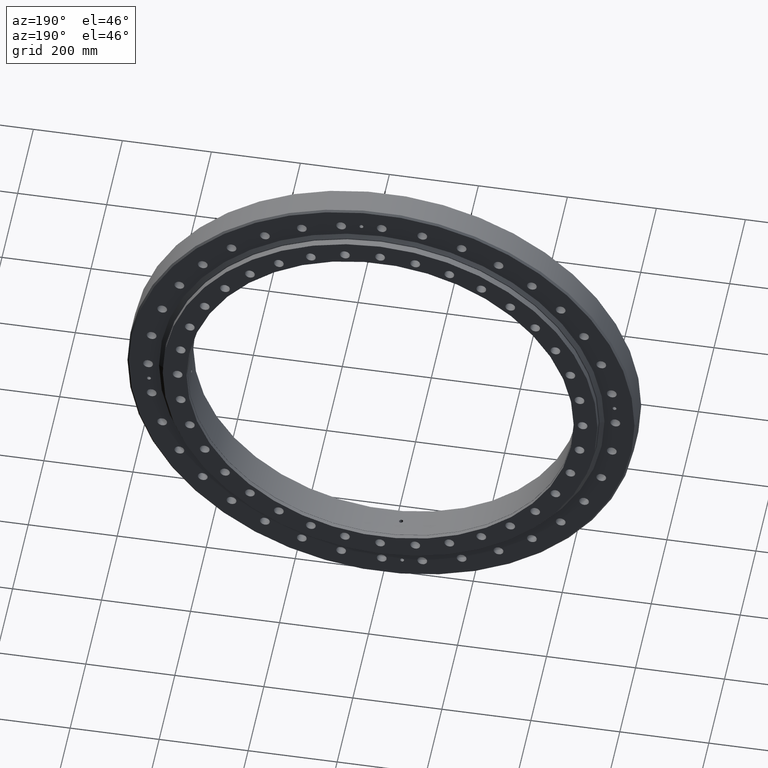
[diagram: clean part render]
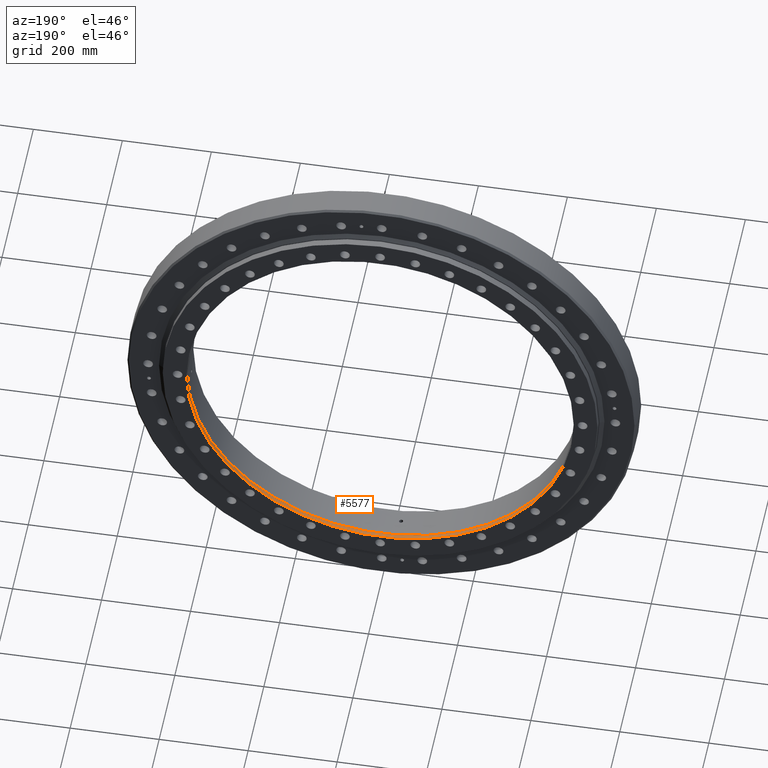
[diagram: same view with one face highlighted and labeled with its STEP entity id]
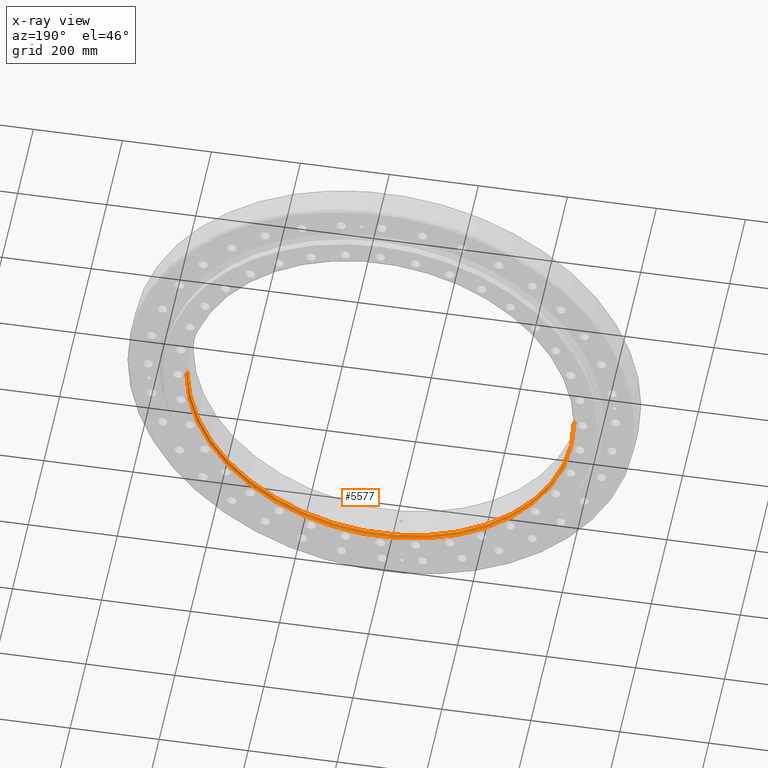
[diagram: x-ray of the same camera — body ghosted, the highlighted face saturated]
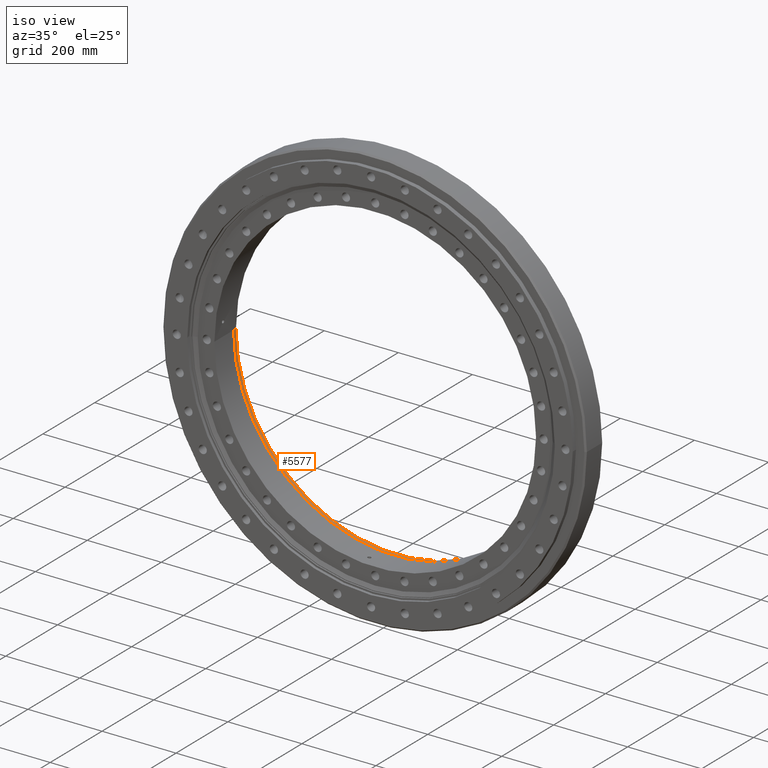
[diagram: same view with one face highlighted and labeled with its STEP entity id]
A machine part, auxiliary view. The second image highlights one B-rep face of the part: STEP entity #5577.
The next image is the same camera in x-ray: the body ghosted, the highlighted face saturated — about 0% of this face is hidden behind the body in this view.
A second angle (iso view) of the same face is appended — the face is thin or edge-on in the first view.
In plain terms, the highlighted cylindrical surface (partial cylindrical patch) has radius 435 mm, axis along (0, 1, 0).
Its self-contained STEP definition (entity closure, byte-faithful):
#274 = AXIS2_PLACEMENT_3D ( 'NONE', #1381, #7666, #8533 ) ;
#811 = VECTOR ( 'NONE', #7237, 1000.000000000000000 ) ;
#1381 = CARTESIAN_POINT ( 'NONE',  ( 0.0000000000000000000, 42.49999999999991500, 0.0000000000000000000 ) ) ;
#1451 = DIRECTION ( 'NONE',  ( 1.000000000000000000, -3.190296047773438100E-017, 0.0000000000000000000 ) ) ;
#1618 = CARTESIAN_POINT ( 'NONE',  ( -435.0000000000000600, 42.49999999999991500, 0.0000000000000000000 ) ) ;
#1739 = CARTESIAN_POINT ( 'NONE',  ( -435.0000000000000600, 52.49999999999999300, 0.0000000000000000000 ) ) ;
#2006 = VECTOR ( 'NONE', #3095, 1000.000000000000000 ) ;
#2083 = CARTESIAN_POINT ( 'NONE',  ( 435.0000000000000600, 42.49999999999991500, 5.327213576290987100E-014 ) ) ;
#2203 = CARTESIAN_POINT ( 'NONE',  ( 0.0000000000000000000, 70.62343277129268400, 0.0000000000000000000 ) ) ;
#2302 = VERTEX_POINT ( 'NONE', #2083 ) ;
#2815 = CARTESIAN_POINT ( 'NONE',  ( 435.0000000000000600, 70.62343277129268400, 5.327213576290987100E-014 ) ) ;
#3033 = CIRCLE ( 'NONE', #274, 435.0000000000000600 ) ;
#3095 = DIRECTION ( 'NONE',  ( 0.0000000000000000000, 1.000000000000000000, 0.0000000000000000000 ) ) ;
#3303 = DIRECTION ( 'NONE',  ( -2.727064569436389700E-017, -1.000000000000000000, 0.0000000000000000000 ) ) ;
#3378 = CARTESIAN_POINT ( 'NONE',  ( 435.0000000000000600, 52.49999999999996400, 5.327213576290987100E-014 ) ) ;
#3544 = ORIENTED_EDGE ( 'NONE', *, *, #4573, .T. ) ;
#4007 = EDGE_CURVE ( 'NONE', #7207, #8674, #5637, .T. ) ;
#4256 = CARTESIAN_POINT ( 'NONE',  ( 0.0000000000000000000, 52.49999999999997900, 0.0000000000000000000 ) ) ;
#4495 = DIRECTION ( 'NONE',  ( 0.0000000000000000000, 1.000000000000000000, 0.0000000000000000000 ) ) ;
#4573 = EDGE_CURVE ( 'NONE', #2302, #7875, #5116, .T. ) ;
#4932 = EDGE_CURVE ( 'NONE', #8674, #7875, #7164, .T. ) ;
#5043 = EDGE_LOOP ( 'NONE', ( #7591, #3544, #7756, #6655 ) ) ;
#5116 = LINE ( 'NONE', #2815, #2006 ) ;
#5245 = CYLINDRICAL_SURFACE ( 'NONE', #6945, 435.0000000000000600 ) ;
#5285 = EDGE_CURVE ( 'NONE', #2302, #7207, #3033, .T. ) ;
#5577 = ADVANCED_FACE ( 'NONE', ( #9062 ), #5245, .F. ) ;
#5637 = LINE ( 'NONE', #8905, #811 ) ;
#6491 = AXIS2_PLACEMENT_3D ( 'NONE', #4256, #3303, #1451 ) ;
#6655 = ORIENTED_EDGE ( 'NONE', *, *, #4007, .F. ) ;
#6945 = AXIS2_PLACEMENT_3D ( 'NONE', #2203, #4495, #7718 ) ;
#7164 = CIRCLE ( 'NONE', #6491, 435.0000000000000600 ) ;
#7207 = VERTEX_POINT ( 'NONE', #1618 ) ;
#7237 = DIRECTION ( 'NONE',  ( 0.0000000000000000000, 1.000000000000000000, 0.0000000000000000000 ) ) ;
#7591 = ORIENTED_EDGE ( 'NONE', *, *, #5285, .F. ) ;
#7666 = DIRECTION ( 'NONE',  ( 0.0000000000000000000, 1.000000000000000000, 0.0000000000000000000 ) ) ;
#7718 = DIRECTION ( 'NONE',  ( -1.000000000000000000, 0.0000000000000000000, 0.0000000000000000000 ) ) ;
#7756 = ORIENTED_EDGE ( 'NONE', *, *, #4932, .F. ) ;
#7875 = VERTEX_POINT ( 'NONE', #3378 ) ;
#8533 = DIRECTION ( 'NONE',  ( -1.000000000000000000, 0.0000000000000000000, 0.0000000000000000000 ) ) ;
#8674 = VERTEX_POINT ( 'NONE', #1739 ) ;
#8905 = CARTESIAN_POINT ( 'NONE',  ( -435.0000000000000600, 70.62343277129268400, 0.0000000000000000000 ) ) ;
#9062 = FACE_OUTER_BOUND ( 'NONE', #5043, .T. ) ;